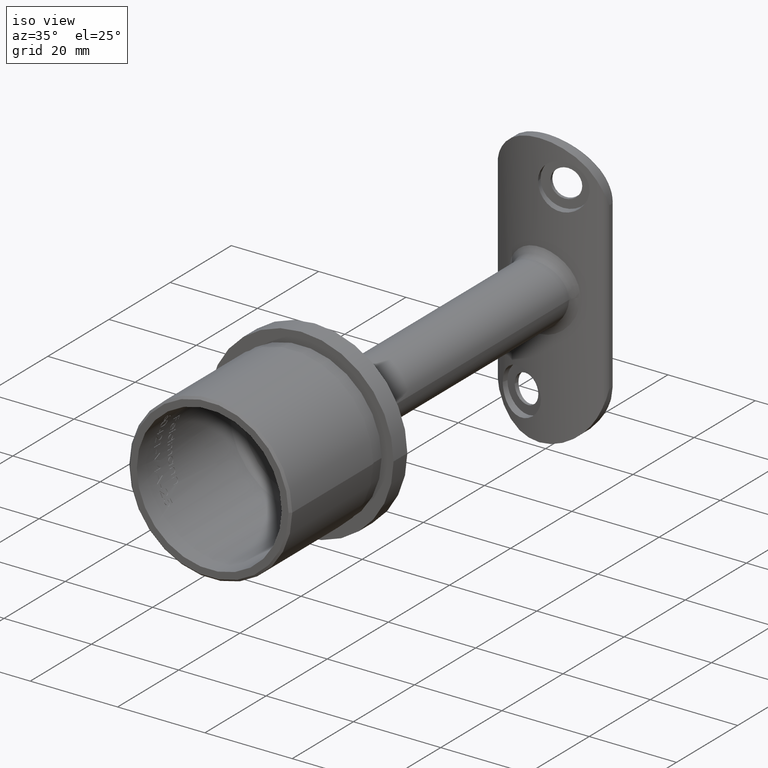
[diagram: clean part render]
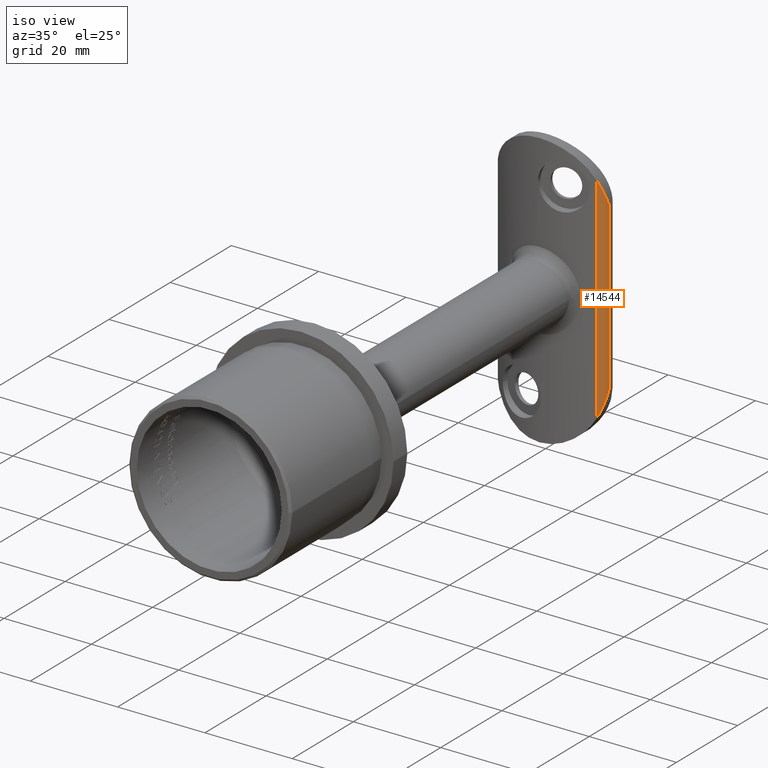
[diagram: same view with one face highlighted and labeled with its STEP entity id]
A machine part, iso view. The second image highlights one B-rep face of the part: STEP entity #14544.
In plain terms, the highlighted cylindrical surface (edge-blend (fillet) strip) has radius 2.5 mm, axis along (-0, -0, 1).
Its self-contained STEP definition (entity closure, byte-faithful):
#232 = EDGE_LOOP ( 'NONE', ( #3442, #18223, #4501, #10428 ) ) ;
#624 = VECTOR ( 'NONE', #24472, 1000.000000000000000 ) ;
#884 = FACE_OUTER_BOUND ( 'NONE', #232, .T. ) ;
#1570 = CARTESIAN_POINT ( 'NONE',  ( 11.17924528301887044, 80.80228541437841727, 24.59235861708638282 ) ) ;
#1639 = EDGE_CURVE ( 'NONE', #7856, #6830, #10258, .T. ) ;
#1694 = CARTESIAN_POINT ( 'NONE',  ( 12.50000000000000178, 82.95433535838647288, -19.11705904974127890 ) ) ;
#1787 = CARTESIAN_POINT ( 'NONE',  ( 11.92928498925566672, 81.39967707999410607, -22.76591228929994060 ) ) ;
#3319 = CARTESIAN_POINT ( 'NONE',  ( 12.50000000000000178, 82.95421893897059817, 19.11731937185864894 ) ) ;
#3442 = ORIENTED_EDGE ( 'NONE', *, *, #21922, .T. ) ;
#3723 = CARTESIAN_POINT ( 'NONE',  ( 11.59801023863511205, 81.06994086387686593, -23.68786670353327750 ) ) ;
#3889 = CARTESIAN_POINT ( 'NONE',  ( 12.36553816864352129, 82.17019780804699280, -20.88889744780188806 ) ) ;
#3994 = DIRECTION ( 'NONE',  ( -0.000000000000000000, -0.000000000000000000, 1.000000000000000000 ) ) ;
#4273 = DIRECTION ( 'NONE',  ( -0.000000000000000000, -0.000000000000000000, 1.000000000000000000 ) ) ;
#4501 = ORIENTED_EDGE ( 'NONE', *, *, #20225, .T. ) ;
#5667 = CARTESIAN_POINT ( 'NONE',  ( 12.50000000000000355, 83.00668568712330853, -19.00000000000000355 ) ) ;
#5713 = CARTESIAN_POINT ( 'NONE',  ( 12.07024653706123196, 81.58815798212818038, 22.28440131901931309 ) ) ;
#5855 = CARTESIAN_POINT ( 'NONE',  ( 12.50000000000000355, 83.00668568712330853, -31.50000000000000000 ) ) ;
#6320 = CARTESIAN_POINT ( 'NONE',  ( 10.00000000000000000, 83.00668568712330853, -31.50000000000000000 ) ) ;
#6830 = VERTEX_POINT ( 'NONE', #18408 ) ;
#6927 = CARTESIAN_POINT ( 'NONE',  ( 11.93494627925312379, 81.40626110357473522, 22.74840771776642967 ) ) ;
#7120 = B_SPLINE_CURVE_WITH_KNOTS ( 'NONE', 3,
 ( #21469, #3319, #21387, #23512, #9393, #23683, #23423, #17571, #19620, #5713, #6927, #25540, #11604, #1570 ),
 .UNSPECIFIED., .F., .F.,
 ( 4, 2, 2, 2, 2, 2, 4 ),
 ( -2.236068598631311573E-05, 0.0003631899196313410037, 0.0007487405252489951401, 0.001519841736484303521, 0.003062044158954904238, 0.004604246581425505171, 0.006146449003896105670 ),
 .UNSPECIFIED. ) ;
#7856 = VERTEX_POINT ( 'NONE', #19849 ) ;
#7866 = CARTESIAN_POINT ( 'NONE',  ( 12.06720966158688491, 81.58345365391645032, -22.29610808249650589 ) ) ;
#9393 = CARTESIAN_POINT ( 'NONE',  ( 12.48647777195587416, 82.74166185208808599, 19.59318968903411218 ) ) ;
#9884 = CARTESIAN_POINT ( 'NONE',  ( 12.46631999452366024, 82.58418036446899180, -19.94705282864200058 ) ) ;
#10258 = LINE ( 'NONE', #5855, #21830 ) ;
#10428 = ORIENTED_EDGE ( 'NONE', *, *, #11678, .F. ) ;
#10897 = VERTEX_POINT ( 'NONE', #21154 ) ;
#10926 = CYLINDRICAL_SURFACE ( 'NONE', #12875, 2.500000000000002220 ) ;
#11604 = CARTESIAN_POINT ( 'NONE',  ( 11.40546206105110016, 80.92330021905452497, 24.14014640719165428 ) ) ;
#11678 = EDGE_CURVE ( 'NONE', #10897, #21593, #22919, .T. ) ;
#12019 = CARTESIAN_POINT ( 'NONE',  ( 11.17924528301887044, 80.80228541437841727, -24.59235861708639703 ) ) ;
#12322 = CARTESIAN_POINT ( 'NONE',  ( 11.17924528301887044, 80.80228541437841727, -31.50000000000000000 ) ) ;
#12875 = AXIS2_PLACEMENT_3D ( 'NONE', #6320, #4273, #14847 ) ;
#13670 = CARTESIAN_POINT ( 'NONE',  ( 12.49156452968231257, 82.79474484299521464, -19.47420232243892002 ) ) ;
#13770 = CARTESIAN_POINT ( 'NONE',  ( 12.44616664353706881, 82.47977065428185028, -20.18281563374364040 ) ) ;
#14544 = ADVANCED_FACE ( 'NONE', ( #884 ), #10926, .T. ) ;
#14847 = DIRECTION ( 'NONE',  ( 1.000000000000000000, 0.000000000000000000, 0.000000000000000000 ) ) ;
#15858 = CARTESIAN_POINT ( 'NONE',  ( 12.49831115572713891, 82.90060036226590512, -19.23721403088848092 ) ) ;
#17571 = CARTESIAN_POINT ( 'NONE',  ( 12.36576253935679937, 82.17098499837813108, 20.88709546276091800 ) ) ;
#18223 = ORIENTED_EDGE ( 'NONE', *, *, #1639, .T. ) ;
#18408 = CARTESIAN_POINT ( 'NONE',  ( 12.50000000000000178, 83.00668568712330853, 19.00000000000000000 ) ) ;
#19620 = CARTESIAN_POINT ( 'NONE',  ( 12.28568775867693041, 81.97045547916407315, 21.35372466234059985 ) ) ;
#19849 = CARTESIAN_POINT ( 'NONE',  ( 12.50000000000000355, 83.00668568712330853, -19.00000000000000355 ) ) ;
#20225 = EDGE_CURVE ( 'NONE', #6830, #21593, #7120, .T. ) ;
#21154 = CARTESIAN_POINT ( 'NONE',  ( 11.17924528301887044, 80.80228541437841727, -24.59235861708639703 ) ) ;
#21387 = CARTESIAN_POINT ( 'NONE',  ( 12.49830401596028473, 82.90040925617326195, 19.23764144689012312 ) ) ;
#21469 = CARTESIAN_POINT ( 'NONE',  ( 12.50000000000000178, 83.00668568712330853, 19.00000000000000000 ) ) ;
#21593 = VERTEX_POINT ( 'NONE', #24697 ) ;
#21830 = VECTOR ( 'NONE', #3994, 1000.000000000000000 ) ;
#21922 = EDGE_CURVE ( 'NONE', #10897, #7856, #22113, .T. ) ;
#22113 = B_SPLINE_CURVE_WITH_KNOTS ( 'NONE', 3,
 ( #12019, #23926, #3723, #1787, #7866, #25683, #3889, #13770, #9884, #25774, #13670, #15858, #1694, #5667 ),
 .UNSPECIFIED., .F., .F.,
 ( 4, 2, 2, 2, 2, 2, 4 ),
 ( 0.02011110075103376277, 0.02164988115220680548, 0.02318866155337985166, 0.02472744195455289437, 0.02549683215513941920, 0.02588152725543267987, 0.02626622235572593708 ),
 .UNSPECIFIED. ) ;
#22919 = LINE ( 'NONE', #12322, #624 ) ;
#23423 = CARTESIAN_POINT ( 'NONE',  ( 12.44613769221485100, 82.47969669371445889, 20.18298760042615569 ) ) ;
#23512 = CARTESIAN_POINT ( 'NONE',  ( 12.49154144297280666, 82.79446204591484104, 19.47483587811160533 ) ) ;
#23683 = CARTESIAN_POINT ( 'NONE',  ( 12.46627732752198980, 82.58394047068595967, 19.94759391102348189 ) ) ;
#23926 = CARTESIAN_POINT ( 'NONE',  ( 11.40428327002671516, 80.92266962407035180, -24.14250283582961387 ) ) ;
#24472 = DIRECTION ( 'NONE',  ( -0.000000000000000000, -0.000000000000000000, 1.000000000000000000 ) ) ;
#24697 = CARTESIAN_POINT ( 'NONE',  ( 11.17924528301887044, 80.80228541437841727, 24.59235861708638282 ) ) ;
#25540 = CARTESIAN_POINT ( 'NONE',  ( 11.60231485585669198, 81.07330443813926024, 23.67758410857955553 ) ) ;
#25683 = CARTESIAN_POINT ( 'NONE',  ( 12.28502203357656342, 81.96860114751497406, -21.35798879190149080 ) ) ;
#25774 = CARTESIAN_POINT ( 'NONE',  ( 12.48650970094131019, 82.74195795361329431, -19.59252536217731233 ) ) ;